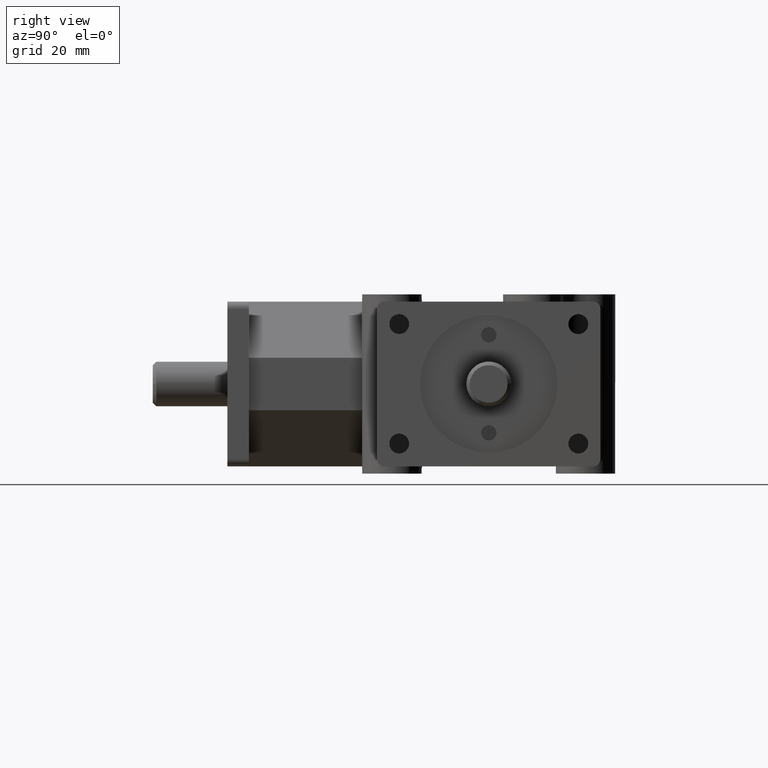
[diagram: clean part render]
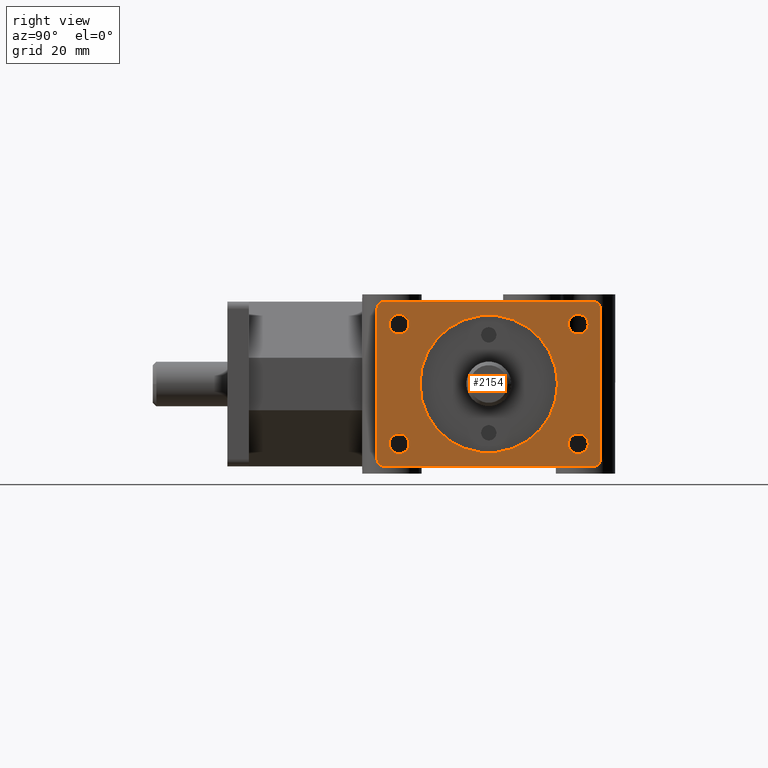
[diagram: same view with one face highlighted and labeled with its STEP entity id]
A machine part, right view. The second image highlights one B-rep face of the part: STEP entity #2154.
In plain terms, the highlighted planar face has unit normal (1, 0, 0).
Its self-contained STEP definition (entity closure, byte-faithful):
#54=FACE_BOUND('',#369,.T.);
#55=FACE_BOUND('',#370,.T.);
#56=FACE_BOUND('',#371,.T.);
#57=FACE_BOUND('',#372,.T.);
#58=FACE_BOUND('',#373,.T.);
#113=PLANE('',#2378);
#216=FACE_OUTER_BOUND('',#368,.T.);
#368=EDGE_LOOP('',(#1849,#1850,#1851,#1852,#1853,#1854,#1855,#1856));
#369=EDGE_LOOP('',(#1857));
#370=EDGE_LOOP('',(#1858));
#371=EDGE_LOOP('',(#1859));
#372=EDGE_LOOP('',(#1860));
#373=EDGE_LOOP('',(#1861));
#434=CIRCLE('',#2238,0.5755);
#457=CIRCLE('',#2274,0.06);
#459=CIRCLE('',#2277,0.06);
#461=CIRCLE('',#2280,0.06);
#463=CIRCLE('',#2283,0.06);
#507=CIRCLE('',#2379,0.083);
#508=CIRCLE('',#2380,0.083);
#509=CIRCLE('',#2381,0.083);
#510=CIRCLE('',#2382,0.083);
#583=LINE('',#3341,#778);
#611=LINE('',#3400,#806);
#689=LINE('',#3607,#884);
#690=LINE('',#3609,#885);
#778=VECTOR('',#2683,1.);
#806=VECTOR('',#2727,1.);
#884=VECTOR('',#2947,1.);
#885=VECTOR('',#2950,1.);
#935=VERTEX_POINT('',#3154);
#974=VERTEX_POINT('',#3247);
#975=VERTEX_POINT('',#3248);
#978=VERTEX_POINT('',#3256);
#979=VERTEX_POINT('',#3257);
#982=VERTEX_POINT('',#3265);
#983=VERTEX_POINT('',#3266);
#986=VERTEX_POINT('',#3274);
#987=VERTEX_POINT('',#3275);
#1094=VERTEX_POINT('',#3610);
#1095=VERTEX_POINT('',#3612);
#1096=VERTEX_POINT('',#3614);
#1097=VERTEX_POINT('',#3616);
#1144=EDGE_CURVE('',#935,#935,#434,.T.);
#1185=EDGE_CURVE('',#974,#975,#457,.T.);
#1189=EDGE_CURVE('',#978,#979,#459,.T.);
#1193=EDGE_CURVE('',#982,#983,#461,.T.);
#1197=EDGE_CURVE('',#986,#987,#463,.T.);
#1233=EDGE_CURVE('',#978,#983,#583,.T.);
#1267=EDGE_CURVE('',#986,#975,#611,.T.);
#1371=EDGE_CURVE('',#987,#982,#689,.T.);
#1372=EDGE_CURVE('',#974,#979,#690,.T.);
#1373=EDGE_CURVE('',#1094,#1094,#507,.T.);
#1374=EDGE_CURVE('',#1095,#1095,#508,.T.);
#1375=EDGE_CURVE('',#1096,#1096,#509,.T.);
#1376=EDGE_CURVE('',#1097,#1097,#510,.T.);
#1849=ORIENTED_EDGE('',*,*,#1185,.F.);
#1850=ORIENTED_EDGE('',*,*,#1372,.T.);
#1851=ORIENTED_EDGE('',*,*,#1189,.F.);
#1852=ORIENTED_EDGE('',*,*,#1233,.T.);
#1853=ORIENTED_EDGE('',*,*,#1193,.F.);
#1854=ORIENTED_EDGE('',*,*,#1371,.F.);
#1855=ORIENTED_EDGE('',*,*,#1197,.F.);
#1856=ORIENTED_EDGE('',*,*,#1267,.T.);
#1857=ORIENTED_EDGE('',*,*,#1373,.T.);
#1858=ORIENTED_EDGE('',*,*,#1374,.T.);
#1859=ORIENTED_EDGE('',*,*,#1375,.T.);
#1860=ORIENTED_EDGE('',*,*,#1376,.T.);
#1861=ORIENTED_EDGE('',*,*,#1144,.T.);
#2154=ADVANCED_FACE('',(#216,#54,#55,#56,#57,#58),#113,.T.);
#2238=AXIS2_PLACEMENT_3D('',#3155,#2513,#2514);
#2274=AXIS2_PLACEMENT_3D('',#3249,#2603,#2604);
#2277=AXIS2_PLACEMENT_3D('',#3258,#2611,#2612);
#2280=AXIS2_PLACEMENT_3D('',#3267,#2619,#2620);
#2283=AXIS2_PLACEMENT_3D('',#3276,#2627,#2628);
#2378=AXIS2_PLACEMENT_3D('',#3608,#2948,#2949);
#2379=AXIS2_PLACEMENT_3D('',#3611,#2951,#2952);
#2380=AXIS2_PLACEMENT_3D('',#3613,#2953,#2954);
#2381=AXIS2_PLACEMENT_3D('',#3615,#2955,#2956);
#2382=AXIS2_PLACEMENT_3D('',#3617,#2957,#2958);
#2513=DIRECTION('center_axis',(-1.,0.,0.));
#2514=DIRECTION('ref_axis',(0.,1.,0.));
#2603=DIRECTION('center_axis',(-1.,0.,0.));
#2604=DIRECTION('ref_axis',(0.,0.70710678118655,-0.707106781186545));
#2611=DIRECTION('center_axis',(-1.,0.,0.));
#2612=DIRECTION('ref_axis',(0.,0.70710678118655,0.707106781186545));
#2619=DIRECTION('center_axis',(-1.,0.,0.));
#2620=DIRECTION('ref_axis',(0.,-0.707106781186548,0.707106781186548));
#2627=DIRECTION('center_axis',(-1.,0.,0.));
#2628=DIRECTION('ref_axis',(0.,-0.707106781186548,-0.707106781186548));
#2683=DIRECTION('',(0.,-1.,0.));
#2727=DIRECTION('',(0.,1.,0.));
#2947=DIRECTION('',(0.,0.,1.));
#2948=DIRECTION('center_axis',(1.,0.,0.));
#2949=DIRECTION('ref_axis',(0.,-1.,0.));
#2950=DIRECTION('',(0.,0.,1.));
#2951=DIRECTION('center_axis',(-1.,0.,0.));
#2952=DIRECTION('ref_axis',(0.,1.,0.));
#2953=DIRECTION('center_axis',(-1.,0.,0.));
#2954=DIRECTION('ref_axis',(0.,1.,0.));
#2955=DIRECTION('center_axis',(-1.,0.,0.));
#2956=DIRECTION('ref_axis',(0.,1.,0.));
#2957=DIRECTION('center_axis',(-1.,0.,0.));
#2958=DIRECTION('ref_axis',(0.,1.,0.));
#3154=CARTESIAN_POINT('',(1.625,1.612,7.04784232909302E-17));
#3155=CARTESIAN_POINT('Origin',(1.625,2.1875,0.));
#3247=CARTESIAN_POINT('',(1.625,3.1225,-0.63));
#3248=CARTESIAN_POINT('',(1.625,3.0625,-0.69));
#3249=CARTESIAN_POINT('Origin',(1.625,3.0625,-0.63));
#3256=CARTESIAN_POINT('',(1.625,3.0625,0.69));
#3257=CARTESIAN_POINT('',(1.625,3.1225,0.63));
#3258=CARTESIAN_POINT('Origin',(1.625,3.0625,0.63));
#3265=CARTESIAN_POINT('',(1.625,1.2525,0.63));
#3266=CARTESIAN_POINT('',(1.625,1.3125,0.69));
#3267=CARTESIAN_POINT('Origin',(1.625,1.3125,0.63));
#3274=CARTESIAN_POINT('',(1.625,1.3125,-0.69));
#3275=CARTESIAN_POINT('',(1.625,1.2525,-0.63));
#3276=CARTESIAN_POINT('Origin',(1.625,1.3125,-0.63));
#3341=CARTESIAN_POINT('',(1.625,1.2525,0.69));
#3400=CARTESIAN_POINT('',(1.625,1.2525,-0.69));
#3607=CARTESIAN_POINT('',(1.625,1.2525,0.));
#3608=CARTESIAN_POINT('Origin',(1.625,3.1225,0.));
#3609=CARTESIAN_POINT('',(1.625,3.1225,0.));
#3610=CARTESIAN_POINT('',(1.625,2.8545,0.5));
#3611=CARTESIAN_POINT('Origin',(1.625,2.9375,0.5));
#3612=CARTESIAN_POINT('',(1.625,1.3545,-0.5));
#3613=CARTESIAN_POINT('Origin',(1.625,1.4375,-0.5));
#3614=CARTESIAN_POINT('',(1.625,1.3545,0.5));
#3615=CARTESIAN_POINT('Origin',(1.625,1.4375,0.5));
#3616=CARTESIAN_POINT('',(1.625,2.8545,-0.5));
#3617=CARTESIAN_POINT('Origin',(1.625,2.9375,-0.5));